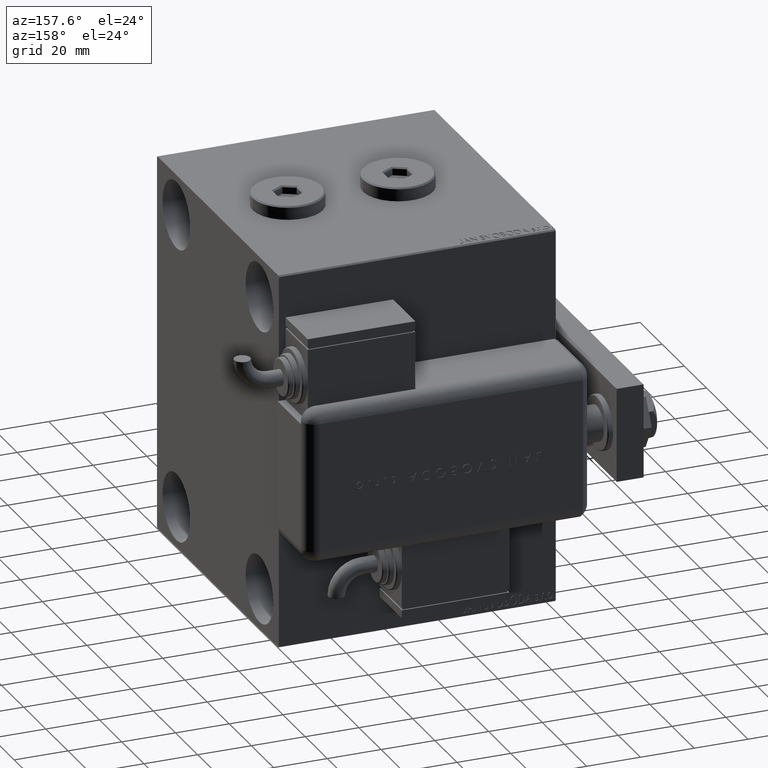
[diagram: clean part render]
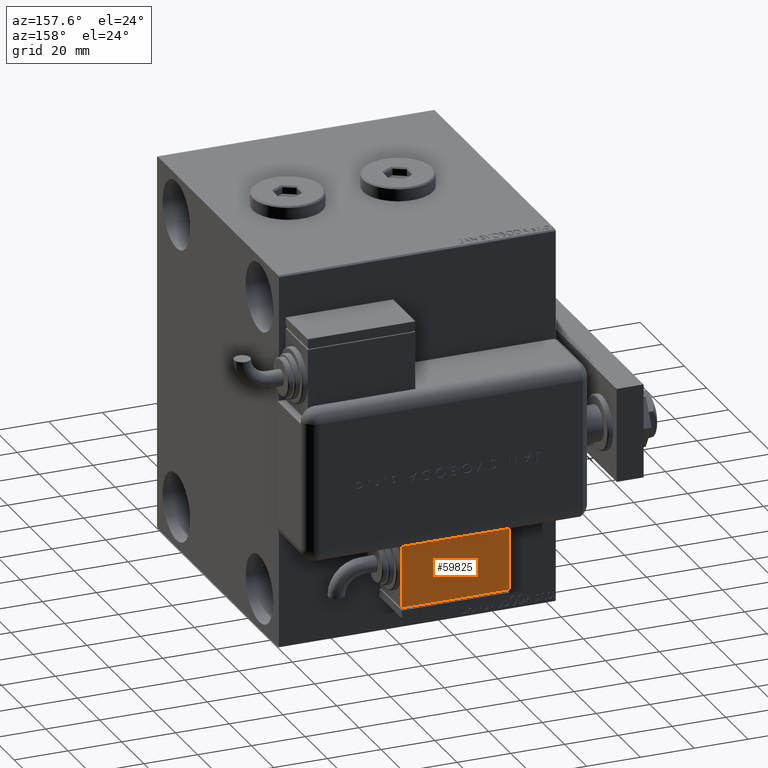
[diagram: same view with one face highlighted and labeled with its STEP entity id]
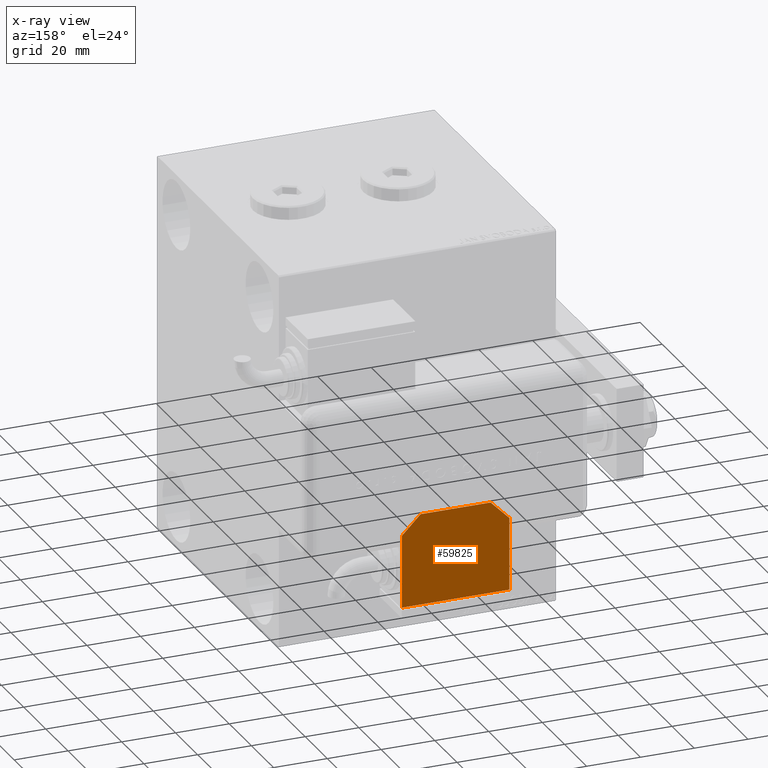
[diagram: x-ray of the same camera — body ghosted, the highlighted face saturated]
A machine part, auxiliary view. The second image highlights one B-rep face of the part: STEP entity #59825.
The next image is the same camera in x-ray: the body ghosted, the highlighted face saturated — about 0% of this face is hidden behind the body in this view.
In plain terms, the highlighted planar face has unit normal (-0, 1, -0).
Its self-contained STEP definition (entity closure, byte-faithful):
#1953 = LINE ( 'NONE', #43538, #26481 ) ;
#2183 = CARTESIAN_POINT ( 'NONE',  ( 20.00000000000005329, -13.49999999999996092, 10.00000000000000000 ) ) ;
#3599 = CARTESIAN_POINT ( 'NONE',  ( 12.99999999999999112, 20.50000000000009592, 10.00000000000000000 ) ) ;
#3739 = LINE ( 'NONE', #55790, #56944 ) ;
#4522 = CARTESIAN_POINT ( 'NONE',  ( -19.99999999999994316, -13.49999999999996092, 10.00000000000000000 ) ) ;
#4868 = VERTEX_POINT ( 'NONE', #14236 ) ;
#5522 = DIRECTION ( 'NONE',  ( -1.000000000000000000, 0.000000000000000000, 0.000000000000000000 ) ) ;
#5645 = VECTOR ( 'NONE', #20429, 1000.000000000000000 ) ;
#6167 = VERTEX_POINT ( 'NONE', #42993 ) ;
#6281 = CARTESIAN_POINT ( 'NONE',  ( -19.99999999999993960, 13.49999999999986500, 10.00000000000000000 ) ) ;
#6878 = VECTOR ( 'NONE', #28704, 1000.000000000000000 ) ;
#10443 = LINE ( 'NONE', #56974, #25077 ) ;
#10780 = CARTESIAN_POINT ( 'NONE',  ( -19.99999999999993960, 2.569960705150834076E-15, 10.00000000000000000 ) ) ;
#11961 = DIRECTION ( 'NONE',  ( 1.000000000000000000, 0.000000000000000000, -0.000000000000000000 ) ) ;
#13259 = DIRECTION ( 'NONE',  ( -0.7071067811865479058, 0.7071067811865470176, -0.000000000000000000 ) ) ;
#14236 = CARTESIAN_POINT ( 'NONE',  ( -19.99999999999993960, 13.49999999999986500, 10.00000000000000000 ) ) ;
#15806 = EDGE_CURVE ( 'NONE', #30007, #33072, #10443, .T. ) ;
#16893 = PLANE ( 'NONE',  #24535 ) ;
#18239 = CARTESIAN_POINT ( 'NONE',  ( -19.99999999999994316, -13.49999999999996092, 10.00000000000000000 ) ) ;
#18552 = DIRECTION ( 'NONE',  ( 1.000000000000000000, 0.000000000000000000, 0.000000000000000000 ) ) ;
#19935 = ORIENTED_EDGE ( 'NONE', *, *, #30544, .T. ) ;
#19960 = CARTESIAN_POINT ( 'NONE',  ( -19.99999999999994316, -13.49999999999996092, 10.00000000000000000 ) ) ;
#20429 = DIRECTION ( 'NONE',  ( -0.7071067811865356934, -0.7071067811865593411, -0.000000000000000000 ) ) ;
#21242 = EDGE_CURVE ( 'NONE', #33072, #4868, #28469, .T. ) ;
#21611 = ORIENTED_EDGE ( 'NONE', *, *, #21643, .T. ) ;
#21643 = EDGE_CURVE ( 'NONE', #44126, #35276, #41952, .T. ) ;
#24393 = CARTESIAN_POINT ( 'NONE',  ( 20.00000000000005329, -13.49999999999996092, 10.00000000000000000 ) ) ;
#24535 = AXIS2_PLACEMENT_3D ( 'NONE', #35682, #54482, #11961 ) ;
#24708 = LINE ( 'NONE', #24393, #6878 ) ;
#25077 = VECTOR ( 'NONE', #5522, 1000.000000000000000 ) ;
#26481 = VECTOR ( 'NONE', #58021, 1000.000000000000000 ) ;
#26536 = ORIENTED_EDGE ( 'NONE', *, *, #31708, .T. ) ;
#27221 = ORIENTED_EDGE ( 'NONE', *, *, #28302, .T. ) ;
#28302 = EDGE_CURVE ( 'NONE', #4868, #33035, #30104, .T. ) ;
#28317 = ORIENTED_EDGE ( 'NONE', *, *, #57408, .T. ) ;
#28469 = LINE ( 'NONE', #6281, #5645 ) ;
#28704 = DIRECTION ( 'NONE',  ( 1.284980352575412699E-16, 1.000000000000000000, 0.000000000000000000 ) ) ;
#30007 = VERTEX_POINT ( 'NONE', #3599 ) ;
#30104 = LINE ( 'NONE', #19960, #49054 ) ;
#30544 = EDGE_CURVE ( 'NONE', #33035, #44126, #1953, .T. ) ;
#31708 = EDGE_CURVE ( 'NONE', #35276, #6167, #24708, .T. ) ;
#33035 = VERTEX_POINT ( 'NONE', #10780 ) ;
#33072 = VERTEX_POINT ( 'NONE', #43731 ) ;
#35276 = VERTEX_POINT ( 'NONE', #2183 ) ;
#35682 = CARTESIAN_POINT ( 'NONE',  ( 0.000000000000000000, 0.000000000000000000, 10.00000000000000000 ) ) ;
#38763 = DIRECTION ( 'NONE',  ( -1.284980352575421081E-16, -1.000000000000000000, -0.000000000000000000 ) ) ;
#41437 = FACE_OUTER_BOUND ( 'NONE', #56150, .T. ) ;
#41952 = LINE ( 'NONE', #18239, #57764 ) ;
#42277 = ORIENTED_EDGE ( 'NONE', *, *, #15806, .T. ) ;
#42993 = CARTESIAN_POINT ( 'NONE',  ( 20.00000000000005684, 13.50000000000003730, 10.00000000000000000 ) ) ;
#43538 = CARTESIAN_POINT ( 'NONE',  ( -19.99999999999994316, -13.49999999999996092, 10.00000000000000000 ) ) ;
#43731 = CARTESIAN_POINT ( 'NONE',  ( -12.99999999999994138, 20.50000000000009592, 10.00000000000000000 ) ) ;
#44126 = VERTEX_POINT ( 'NONE', #4522 ) ;
#48065 = ORIENTED_EDGE ( 'NONE', *, *, #21242, .T. ) ;
#49054 = VECTOR ( 'NONE', #38763, 1000.000000000000000 ) ;
#54482 = DIRECTION ( 'NONE',  ( 0.000000000000000000, 0.000000000000000000, 1.000000000000000000 ) ) ;
#55790 = CARTESIAN_POINT ( 'NONE',  ( 9.999999999999984013, 23.50000000000009592, 10.00000000000000000 ) ) ;
#56150 = EDGE_LOOP ( 'NONE', ( #28317, #42277, #48065, #27221, #19935, #21611, #26536 ) ) ;
#56944 = VECTOR ( 'NONE', #13259, 1000.000000000000114 ) ;
#56974 = CARTESIAN_POINT ( 'NONE',  ( -10.00000000000004086, 20.50000000000009592, 10.00000000000000000 ) ) ;
#57408 = EDGE_CURVE ( 'NONE', #6167, #30007, #3739, .T. ) ;
#57764 = VECTOR ( 'NONE', #18552, 1000.000000000000000 ) ;
#58021 = DIRECTION ( 'NONE',  ( -1.284980352575421081E-16, -1.000000000000000000, -0.000000000000000000 ) ) ;
#59825 = ADVANCED_FACE ( 'NONE', ( #41437 ), #16893, .T. ) ;